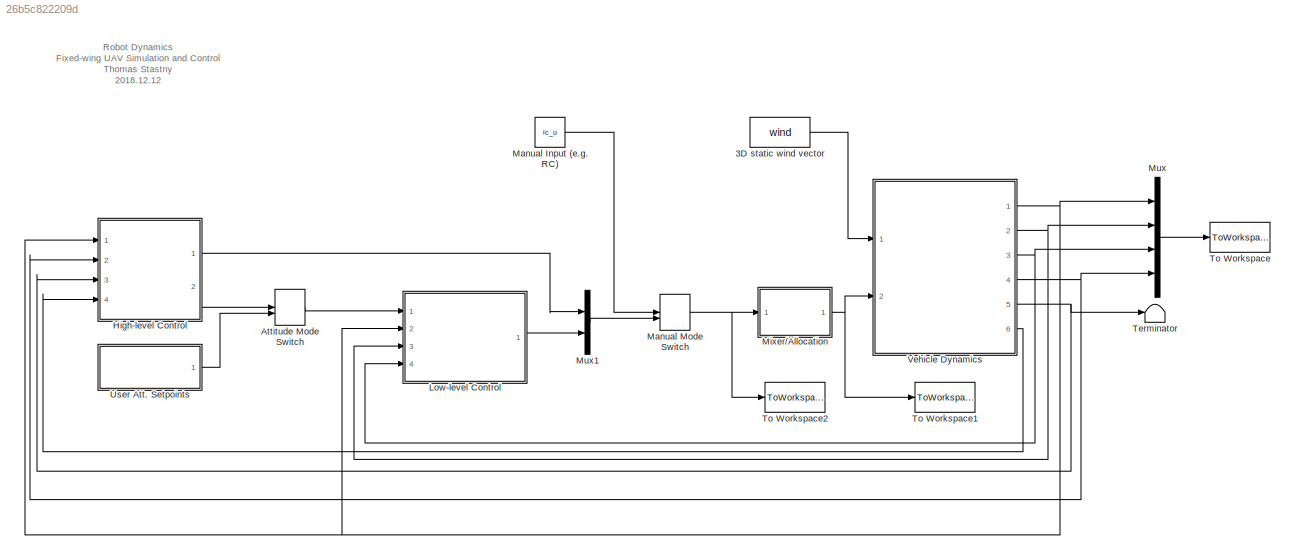
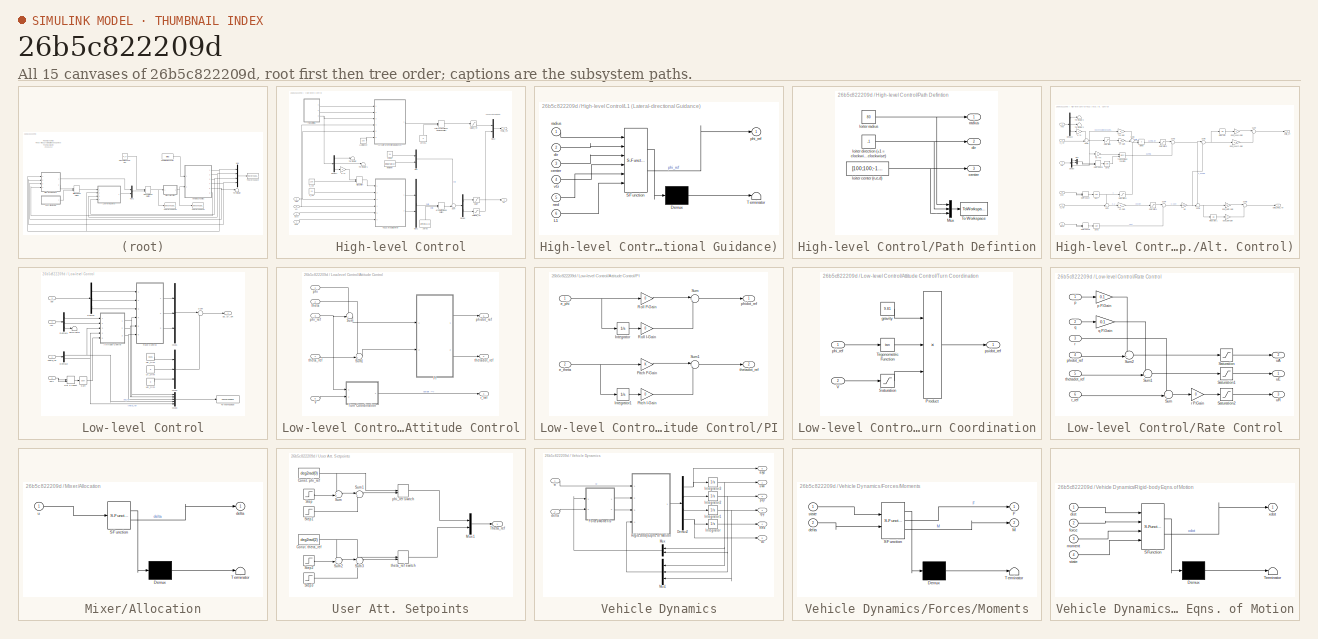
[diagram: thumbnail index - all 15 canvases of the model, root first then tree order]
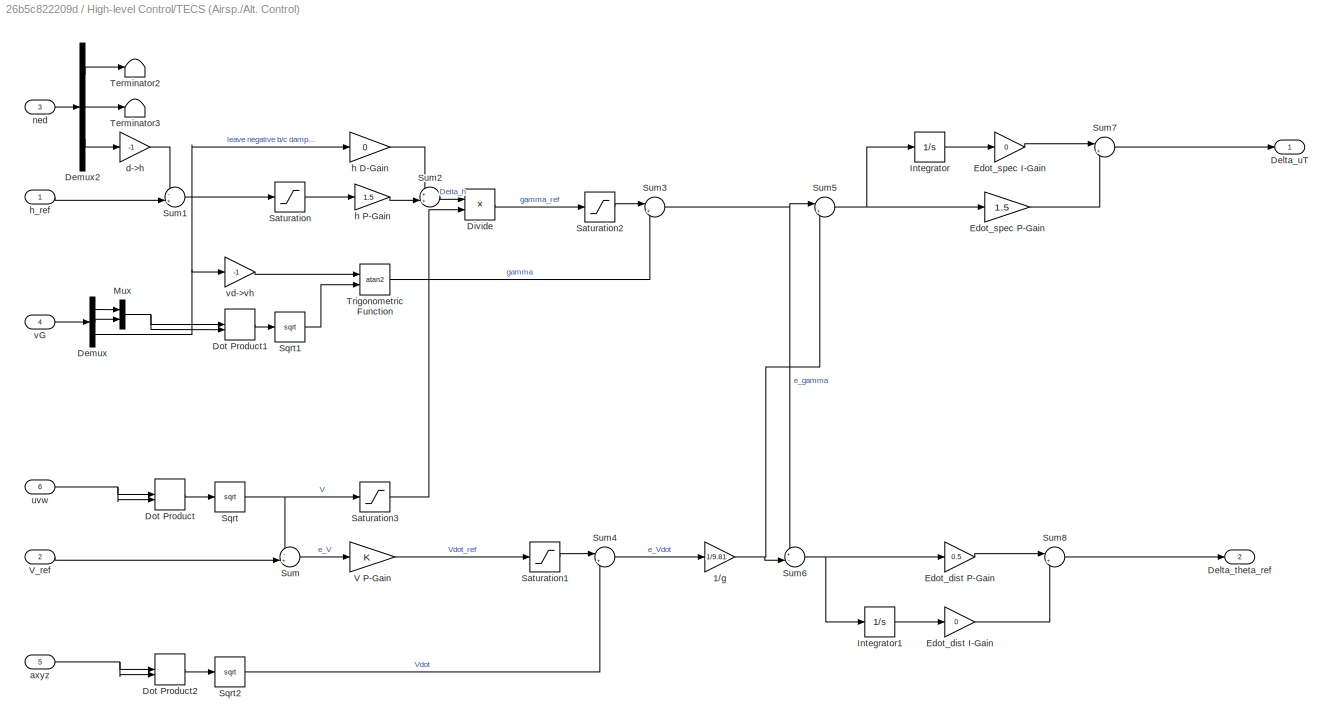
MODEL slx_26b5c822209d
KIND model
CONFIG AbsTol = auto
CONFIG EnableMultiTasking = on
CONFIG FixedStep = 0.01
CONFIG MaxStep = auto
CONFIG MinStep = auto
CONFIG RelTol = 1e-3
CONFIG SampleTimeConstraint = Unconstrained
CONFIG SolverName = ode4
CONFIG StartTime = 0.0
CONFIG StopTime = 15
BLOCK [Constant] 3D static wind vector
  Value = wind
BLOCK [ManualSwitch] Attitude Mode Switch
  CurrentSetting = 0
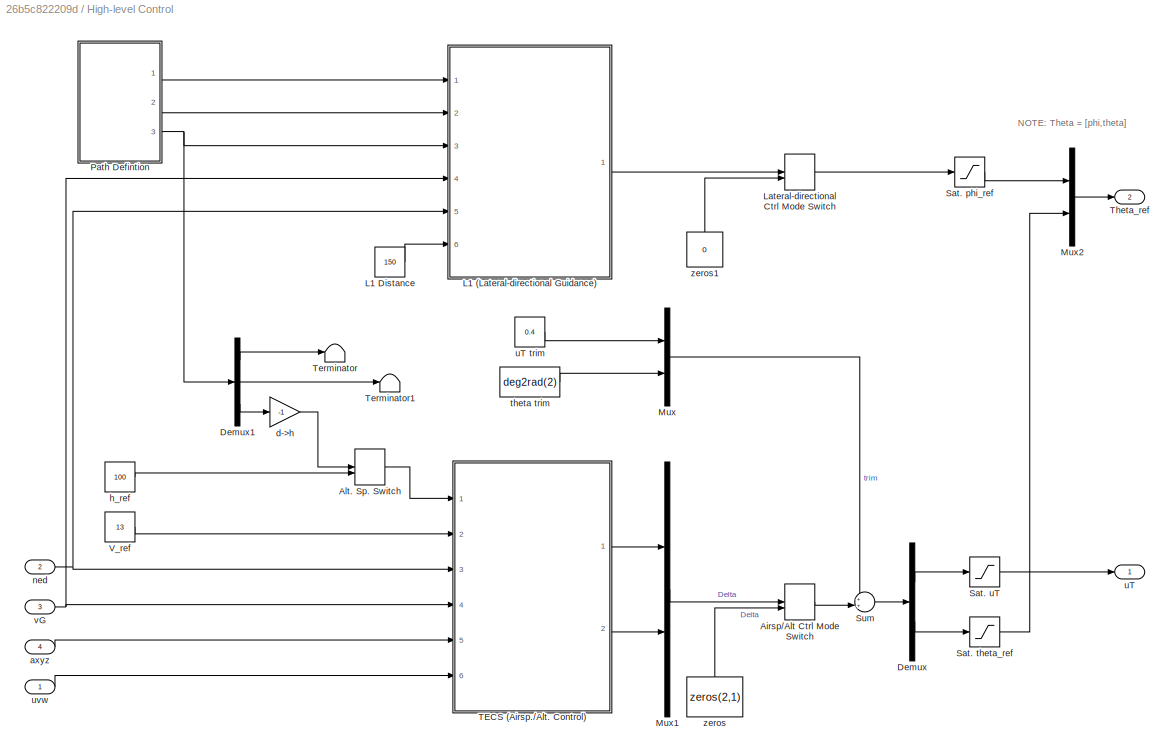
BLOCK [SubSystem] High-level Control
  Ports = [4, 2]
  RequestExecContextInheritance = off
BLOCK [ManualSwitch] High-level Control/Airsp//Alt Ctrl Mode Switch
  CurrentSetting = 0
BLOCK [ManualSwitch] High-level Control/Alt. Sp. Switch
  CurrentSetting = 0
BLOCK [Demux] High-level Control/Demux
  Outputs = 2
  Ports = [1, 2]
BLOCK [Demux] High-level Control/Demux1
  Outputs = 3
  Ports = [1, 3]
BLOCK [SubSystem] High-level Control/L1 (Lateral-directional Guidance)
  ErrorFcn = Stateflow.Translate.translate
  PermitHierarchicalResolution = ExplicitOnly
  Ports = [6, 1]
  RequestExecContextInheritance = off
  SFBlockType = MATLAB Function
  TreatAsAtomicUnit = on
BLOCK [Demux] High-level Control/L1 (Lateral-directional Guidance)/ Demux 
  Outputs = 1
  Ports = [1, 1]
BLOCK [S-Function] High-level Control/L1 (Lateral-directional Guidance)/ SFunction 
  EnableBusSupport = on
  FunctionName = sf_sfun
  PortCounts = [6 2]
  Ports = [6, 2]
  SFcnIsStateOwnerBlock = off
  SFunctionDeploymentMode = off
  Tag = Stateflow S-Function 4
BLOCK [Terminator] High-level Control/L1 (Lateral-directional Guidance)/ Terminator 
BLOCK [Inport] High-level Control/L1 (Lateral-directional Guidance)/L1
  Port = 6
BLOCK [Inport] High-level Control/L1 (Lateral-directional Guidance)/center
  Port = 3
BLOCK [Inport] High-level Control/L1 (Lateral-directional Guidance)/dir
  Port = 2
BLOCK [Inport] High-level Control/L1 (Lateral-directional Guidance)/ned
  Port = 5
BLOCK [Outport] High-level Control/L1 (Lateral-directional Guidance)/phi_ref
BLOCK [Inport] High-level Control/L1 (Lateral-directional Guidance)/radius
BLOCK [Inport] High-level Control/L1 (Lateral-directional Guidance)/vG
  Port = 4
BLOCK [Constant] High-level Control/L1 Distance
  Value = 150
BLOCK [ManualSwitch] High-level Control/Lateral-directional Ctrl Mode Switch
  CurrentSetting = 0
BLOCK [Mux] High-level Control/Mux
  DisplayOption = bar
  Inputs = 2
  Ports = [2, 1]
BLOCK [Mux] High-level Control/Mux1
  DisplayOption = bar
  Inputs = 2
  Ports = [2, 1]
BLOCK [Mux] High-level Control/Mux2
  DisplayOption = bar
  Inputs = 2
  Ports = [2, 1]
BLOCK [SubSystem] High-level Control/Path Defintion
  Ports = [0, 3]
  RequestExecContextInheritance = off
BLOCK [Mux] High-level Control/Path Defintion/Mux
  DisplayOption = bar
  Inputs = 3
  Ports = [3, 1]
BLOCK [ToWorkspace] High-level Control/Path Defintion/To Workspace
  FixptAsFi = on
  MaxDataPoints = inf
  Ports = [1]
  SampleTime = -1
  SaveFormat = Structure With Time
  VariableName = path_out
BLOCK [Outport] High-level Control/Path Defintion/center
  Port = 3
BLOCK [Outport] High-level Control/Path Defintion/dir
  Port = 2
BLOCK [Constant] High-level Control/Path Defintion/loiter center (n,e,d)
  Value = [100;100;-100]
BLOCK [Constant] High-level Control/Path Defintion/loiter direction (+1 = clockwise, -1 = counter-clockwise)
  Value = -1
BLOCK [Constant] High-level Control/Path Defintion/loiter radius
  Value = 80
BLOCK [Outport] High-level Control/Path Defintion/radius
BLOCK [Saturate] High-level Control/Sat. phi_ref
  LowerLimit = deg2rad(-30)
  UpperLimit = deg2rad(30)
BLOCK [Saturate] High-level Control/Sat. theta_ref
  LowerLimit = deg2rad(-15)
  UpperLimit = deg2rad(15)
BLOCK [Saturate] High-level Control/Sat. uT
  LowerLimit = 0
  UpperLimit = 1
BLOCK [Sum] High-level Control/Sum
  Inputs = ++|
  Ports = [2, 1]
BLOCK [SubSystem] High-level Control/TECS (Airsp.//Alt. Control)
  Ports = [6, 2]
  RequestExecContextInheritance = off
BLOCK [Gain] High-level Control/TECS (Airsp.//Alt. Control)/1//g
  Gain = 1/9.81
BLOCK [Outport] High-level Control/TECS (Airsp.//Alt. Control)/Delta_theta_ref
  Port = 2
BLOCK [Outport] High-level Control/TECS (Airsp.//Alt. Control)/Delta_uT
BLOCK [Demux] High-level Control/TECS (Airsp.//Alt. Control)/Demux
  Outputs = 3
  Ports = [1, 3]
BLOCK [Demux] High-level Control/TECS (Airsp.//Alt. Control)/Demux2
  Outputs = 3
  Ports = [1, 3]
BLOCK [Product] High-level Control/TECS (Airsp.//Alt. Control)/Divide
  Inputs = */
  Ports = [2, 1]
BLOCK [DotProduct] High-level Control/TECS (Airsp.//Alt. Control)/Dot Product
  OutDataTypeStr = Inherit: Inherit via internal rule
BLOCK [DotProduct] High-level Control/TECS (Airsp.//Alt. Control)/Dot Product1
  OutDataTypeStr = Inherit: Inherit via internal rule
BLOCK [DotProduct] High-level Control/TECS (Airsp.//Alt. Control)/Dot Product2
  OutDataTypeStr = Inherit: Inherit via internal rule
BLOCK [Gain] High-level Control/TECS (Airsp.//Alt. Control)/Edot_dist I-Gain
  Gain = 0
BLOCK [Gain] High-level Control/TECS (Airsp.//Alt. Control)/Edot_dist P-Gain
  Gain = 0.5
BLOCK [Gain] High-level Control/TECS (Airsp.//Alt. Control)/Edot_spec I-Gain
  Gain = 0
BLOCK [Gain] High-level Control/TECS (Airsp.//Alt. Control)/Edot_spec P-Gain
  Gain = 1.5
BLOCK [Integrator] High-level Control/TECS (Airsp.//Alt. Control)/Integrator
  Ports = [1, 1]
BLOCK [Integrator] High-level Control/TECS (Airsp.//Alt. Control)/Integrator1
  Ports = [1, 1]
BLOCK [Mux] High-level Control/TECS (Airsp.//Alt. Control)/Mux
  DisplayOption = bar
  Inputs = 2
  Ports = [2, 1]
BLOCK [Saturate] High-level Control/TECS (Airsp.//Alt. Control)/Saturation
  LowerLimit = -10
  UpperLimit = 10
BLOCK [Saturate] High-level Control/TECS (Airsp.//Alt. Control)/Saturation1
  LowerLimit = -10
  UpperLimit = 10
BLOCK [Saturate] High-level Control/TECS (Airsp.//Alt. Control)/Saturation2
  LowerLimit = deg2rad(-15)
  UpperLimit = deg2rad(15)
BLOCK [Saturate] High-level Control/TECS (Airsp.//Alt. Control)/Saturation3
  LowerLimit = 5
  UpperLimit = 20
BLOCK [Sqrt] High-level Control/TECS (Airsp.//Alt. Control)/Sqrt
BLOCK [Sqrt] High-level Control/TECS (Airsp.//Alt. Control)/Sqrt1
BLOCK [Sqrt] High-level Control/TECS (Airsp.//Alt. Control)/Sqrt2
BLOCK [Sum] High-level Control/TECS (Airsp.//Alt. Control)/Sum
  Inputs = -+|
  Ports = [2, 1]
BLOCK [Sum] High-level Control/TECS (Airsp.//Alt. Control)/Sum1
  Inputs = -+|
  Ports = [2, 1]
BLOCK [Sum] High-level Control/TECS (Airsp.//Alt. Control)/Sum2
  Inputs = ++|
  Ports = [2, 1]
BLOCK [Sum] High-level Control/TECS (Airsp.//Alt. Control)/Sum3
  Inputs = |+-
  Ports = [2, 1]
BLOCK [Sum] High-level Control/TECS (Airsp.//Alt. Control)/Sum4
  Inputs = |+-
  Ports = [2, 1]
BLOCK [Sum] High-level Control/TECS (Airsp.//Alt. Control)/Sum5
  Inputs = |++
  Ports = [2, 1]
BLOCK [Sum] High-level Control/TECS (Airsp.//Alt. Control)/Sum6
  Inputs = +-|
  Ports = [2, 1]
BLOCK [Sum] High-level Control/TECS (Airsp.//Alt. Control)/Sum7
  Inputs = |++
  Ports = [2, 1]
BLOCK [Sum] High-level Control/TECS (Airsp.//Alt. Control)/Sum8
  Inputs = |++
  Ports = [2, 1]
BLOCK [Terminator] High-level Control/TECS (Airsp.//Alt. Control)/Terminator2
BLOCK [Terminator] High-level Control/TECS (Airsp.//Alt. Control)/Terminator3
BLOCK [Trigonometry] High-level Control/TECS (Airsp.//Alt. Control)/Trigonometric Function
  Operator = atan2
  Ports = [2, 1]
BLOCK [Gain] High-level Control/TECS (Airsp.//Alt. Control)/V P-Gain
BLOCK [Inport] High-level Control/TECS (Airsp.//Alt. Control)/V_ref
  Port = 2
BLOCK [Inport] High-level Control/TECS (Airsp.//Alt. Control)/axyz
  Port = 5
BLOCK [Gain] High-level Control/TECS (Airsp.//Alt. Control)/d->h
  Gain = -1
BLOCK [Gain] High-level Control/TECS (Airsp.//Alt. Control)/h D-Gain
  Gain = 0
BLOCK [Gain] High-level Control/TECS (Airsp.//Alt. Control)/h P-Gain
  Gain = 1.5
BLOCK [Inport] High-level Control/TECS (Airsp.//Alt. Control)/h_ref
BLOCK [Inport] High-level Control/TECS (Airsp.//Alt. Control)/ned
  Port = 3
BLOCK [Inport] High-level Control/TECS (Airsp.//Alt. Control)/uvw
  Port = 6
BLOCK [Inport] High-level Control/TECS (Airsp.//Alt. Control)/vG
  Port = 4
BLOCK [Gain] High-level Control/TECS (Airsp.//Alt. Control)/vd->vh
  Gain = -1
BLOCK [Terminator] High-level Control/Terminator
BLOCK [Terminator] High-level Control/Terminator1
BLOCK [Outport] High-level Control/Theta_ref
  Port = 2
BLOCK [Constant] High-level Control/V_ref
  Value = 13
BLOCK [Inport] High-level Control/axyz
  Port = 4
BLOCK [Gain] High-level Control/d->h
  Gain = -1
BLOCK [Constant] High-level Control/h_ref
  Value = 100
BLOCK [Inport] High-level Control/ned
  Port = 2
BLOCK [Constant] High-level Control/theta trim
  Value = deg2rad(2)
BLOCK [Outport] High-level Control/uT
BLOCK [Constant] High-level Control/uT trim
  Value = 0.4
BLOCK [Inport] High-level Control/uvw
BLOCK [Inport] High-level Control/vG
  Port = 3
BLOCK [Constant] High-level Control/zeros
  NameLocation = right
  Value = zeros(2,1)
BLOCK [Constant] High-level Control/zeros1
  NameLocation = right
  Value = 0
BLOCK [SubSystem] Low-level Control
  Ports = [4, 1]
  RequestExecContextInheritance = off
BLOCK [SubSystem] Low-level Control/Attitude Control
  Ports = [5, 3]
  RequestExecContextInheritance = off
BLOCK [SubSystem] Low-level Control/Attitude Control/PI
  Ports = [2, 2]
  RequestExecContextInheritance = off
BLOCK [Integrator] Low-level Control/Attitude Control/PI/Integrator
  Ports = [1, 1]
BLOCK [Integrator] Low-level Control/Attitude Control/PI/Integrator1
  Ports = [1, 1]
BLOCK [Gain] Low-level Control/Attitude Control/PI/Pitch I-Gain
  Gain = 0
BLOCK [Gain] Low-level Control/Attitude Control/PI/Pitch P-Gain
BLOCK [Gain] Low-level Control/Attitude Control/PI/Roll I-Gain
  Gain = 0
BLOCK [Gain] Low-level Control/Attitude Control/PI/Roll P-Gain
  Gain = 0
BLOCK [Sum] Low-level Control/Attitude Control/PI/Sum
  Inputs = |++
  Ports = [2, 1]
BLOCK [Sum] Low-level Control/Attitude Control/PI/Sum1
  Inputs = |++
  Ports = [2, 1]
BLOCK [Inport] Low-level Control/Attitude Control/PI/e_phi
BLOCK [Inport] Low-level Control/Attitude Control/PI/e_theta
  Port = 2
BLOCK [Outport] Low-level Control/Attitude Control/PI/phidot_ref
BLOCK [Outport] Low-level Control/Attitude Control/PI/thetadot_ref
  Port = 2
BLOCK [Sum] Low-level Control/Attitude Control/Sum
  Inputs = -+|
  Ports = [2, 1]
BLOCK [Sum] Low-level Control/Attitude Control/Sum1
  Inputs = -+|
  Ports = [2, 1]
BLOCK [SubSystem] Low-level Control/Attitude Control/Turn Coordination
  Ports = [2, 1]
  RequestExecContextInheritance = off
BLOCK [Product] Low-level Control/Attitude Control/Turn Coordination/Product
  Inputs = **/
  Ports = [3, 1]
BLOCK [Saturate] Low-level Control/Attitude Control/Turn Coordination/Saturation
  LowerLimit = 5
  UpperLimit = 20
BLOCK [Trigonometry] Low-level Control/Attitude Control/Turn Coordination/Trigonometric Function
  Operator = tan
  Ports = [1, 1]
BLOCK [Inport] Low-level Control/Attitude Control/Turn Coordination/V
  Port = 2
BLOCK [Constant] Low-level Control/Attitude Control/Turn Coordination/gravity
  Value = 9.81
BLOCK [Inport] Low-level Control/Attitude Control/Turn Coordination/phi_ref
BLOCK [Outport] Low-level Control/Attitude Control/Turn Coordination/psidot_ref
BLOCK [Inport] Low-level Control/Attitude Control/V
  Port = 5
BLOCK [Inport] Low-level Control/Attitude Control/phi
BLOCK [Inport] Low-level Control/Attitude Control/phi_ref
  Port = 3
BLOCK [Outport] Low-level Control/Attitude Control/phidot_ref
BLOCK [Outport] Low-level Control/Attitude Control/r_ref
  Port = 3
BLOCK [Inport] Low-level Control/Attitude Control/theta
  Port = 2
BLOCK [Inport] Low-level Control/Attitude Control/theta_ref
  Port = 4
BLOCK [Outport] Low-level Control/Attitude Control/thetadot_ref
  Port = 2
BLOCK [Demux] Low-level Control/Demux
  Outputs = 3
  Ports = [1, 3]
BLOCK [Demux] Low-level Control/Demux1
  Outputs = 3
  Ports = [1, 3]
BLOCK [Demux] Low-level Control/Demux2
  Outputs = 2
  Ports = [1, 2]
BLOCK [DotProduct] Low-level Control/Dot Product
  OutDataTypeStr = Inherit: Inherit via internal rule
BLOCK [Mux] Low-level Control/Mux1
  DisplayOption = bar
  Inputs = 3
  Ports = [3, 1]
BLOCK [Mux] Low-level Control/Mux2
  DisplayOption = bar
  Inputs = 3
  Ports = [3, 1]
BLOCK [Mux] Low-level Control/Mux3
  DisplayOption = bar
  Inputs = 5
  Ports = [5, 1]
BLOCK [SubSystem] Low-level Control/Rate Control
  Ports = [6, 3]
  RequestExecContextInheritance = off
BLOCK [Saturate] Low-level Control/Rate Control/Saturation
  LowerLimit = -1
  UpperLimit = 1
BLOCK [Saturate] Low-level Control/Rate Control/Saturation1
  LowerLimit = -1
  UpperLimit = 1
BLOCK [Saturate] Low-level Control/Rate Control/Saturation2
  LowerLimit = -1
  UpperLimit = 1
BLOCK [Sum] Low-level Control/Rate Control/Sum
  Inputs = -+|
  Ports = [2, 1]
BLOCK [Sum] Low-level Control/Rate Control/Sum1
  Inputs = -+|
  Ports = [2, 1]
BLOCK [Sum] Low-level Control/Rate Control/Sum2
  Inputs = -+|
  Ports = [2, 1]
BLOCK [Inport] Low-level Control/Rate Control/p
BLOCK [Gain] Low-level Control/Rate Control/p P-Gain
  Gain = 0.1
BLOCK [Inport] Low-level Control/Rate Control/phidot_ref
  Port = 4
BLOCK [Inport] Low-level Control/Rate Control/q
  Port = 2
BLOCK [Gain] Low-level Control/Rate Control/q P-Gain
  Gain = 0.1
BLOCK [Inport] Low-level Control/Rate Control/r
  Port = 3
BLOCK [Gain] Low-level Control/Rate Control/r P-Gain
  Gain = 0
BLOCK [Inport] Low-level Control/Rate Control/r_ref
  Port = 6
BLOCK [Inport] Low-level Control/Rate Control/thetadot_ref
  Port = 5
BLOCK [Outport] Low-level Control/Rate Control/uA 
  Port = 2
BLOCK [Outport] Low-level Control/Rate Control/uE
BLOCK [Outport] Low-level Control/Rate Control/uR
  Port = 3
BLOCK [Sqrt] Low-level Control/Sqrt
BLOCK [Sum] Low-level Control/Sum
  Inputs = |++
  Ports = [2, 1]
BLOCK [Terminator] Low-level Control/Terminator
BLOCK [Inport] Low-level Control/Theta_ref
BLOCK [ToWorkspace] Low-level Control/To Workspace
  FixptAsFi = on
  MaxDataPoints = inf
  Ports = [1]
  SampleTime = -1
  SaveFormat = Structure With Time
  VariableName = control_ref_out
BLOCK [Inport] Low-level Control/pqr
  Port = 3
BLOCK [Inport] Low-level Control/rpy
  Port = 4
BLOCK [Constant] Low-level Control/uA_trim
  Value = 0
BLOCK [Outport] Low-level Control/uE,uA,uR
BLOCK [Constant] Low-level Control/uE_trim
  Value = 0.025
BLOCK [Constant] Low-level Control/uR_trim
  Value = 0
BLOCK [Inport] Low-level Control/uwv
  Port = 2
BLOCK [Constant] Manual Input (e.g. RC)
  Value = ic_u
BLOCK [ManualSwitch] Manual Mode Switch
  CurrentSetting = 0
BLOCK [SubSystem] Mixer//Allocation
  ErrorFcn = Stateflow.Translate.translate
  PermitHierarchicalResolution = ExplicitOnly
  Ports = [1, 1]
  RequestExecContextInheritance = off
  SFBlockType = MATLAB Function
  TreatAsAtomicUnit = on
BLOCK [Demux] Mixer//Allocation/ Demux 
  Outputs = 1
  Ports = [1, 1]
BLOCK [S-Function] Mixer//Allocation/ SFunction 
  EnableBusSupport = on
  FunctionName = sf_sfun
  PortCounts = [1 2]
  Ports = [1, 2]
  SFcnIsStateOwnerBlock = off
  SFunctionDeploymentMode = off
  Tag = Stateflow S-Function 1
BLOCK [Terminator] Mixer//Allocation/ Terminator 
BLOCK [Outport] Mixer//Allocation/delta
BLOCK [Inport] Mixer//Allocation/u
BLOCK [Mux] Mux
  DisplayOption = bar
  Ports = [4, 1]
BLOCK [Mux] Mux1
  DisplayOption = bar
  Inputs = 2
  Ports = [2, 1]
BLOCK [Terminator] Terminator
BLOCK [ToWorkspace] To Workspace
  FixptAsFi = on
  MaxDataPoints = inf
  Ports = [1]
  SampleTime = -1
  SaveFormat = Structure With Time
  VariableName = xout
BLOCK [ToWorkspace] To Workspace1
  FixptAsFi = on
  MaxDataPoints = inf
  Ports = [1]
  SampleTime = -1
  SaveFormat = Structure With Time
  VariableName = delta_out
BLOCK [ToWorkspace] To Workspace2
  FixptAsFi = on
  MaxDataPoints = inf
  Ports = [1]
  SampleTime = -1
  SaveFormat = Structure With Time
  VariableName = uout
BLOCK [SubSystem] User Att. Setpoints
  Ports = [0, 1]
  RequestExecContextInheritance = off
BLOCK [Constant] User Att. Setpoints/Const. phi_ref
  Value = deg2rad(0)
BLOCK [Constant] User Att. Setpoints/Const. theta_ref
  Value = deg2rad(2)
BLOCK [Mux] User Att. Setpoints/Mux1
  DisplayOption = bar
  Inputs = 2
  Ports = [2, 1]
BLOCK [Step] User Att. Setpoints/Step
  After = deg2rad(20)
  SampleTime = 0
  Time = 5
BLOCK [Step] User Att. Setpoints/Step1
  After = deg2rad(-20)
  SampleTime = 0
  Time = 7
BLOCK [Step] User Att. Setpoints/Step2
  After = deg2rad(7)
  SampleTime = 0
  Time = 5
BLOCK [Step] User Att. Setpoints/Step3
  After = deg2rad(-7)
  SampleTime = 0
  Time = 7
BLOCK [Sum] User Att. Setpoints/Sum
  Inputs = ++|
  Ports = [2, 1]
BLOCK [Sum] User Att. Setpoints/Sum1
  Inputs = |++
  Ports = [2, 1]
BLOCK [Sum] User Att. Setpoints/Sum2
  Inputs = ++|
  Ports = [2, 1]
BLOCK [Sum] User Att. Setpoints/Sum3
  Inputs = |++
  Ports = [2, 1]
BLOCK [Outport] User Att. Setpoints/Theta_ref
BLOCK [ManualSwitch] User Att. Setpoints/phi_ref switch
  CurrentSetting = 0
BLOCK [ManualSwitch] User Att. Setpoints/theta_ref switch
  CurrentSetting = 0
BLOCK [SubSystem] Vehicle Dynamics
  Ports = [2, 6]
  RequestExecContextInheritance = off
BLOCK [Demux] Vehicle Dynamics/Demux2
  Ports = [1, 4]
BLOCK [SubSystem] Vehicle Dynamics/Forces//Moments
  ErrorFcn = Stateflow.Translate.translate
  PermitHierarchicalResolution = ExplicitOnly
  Ports = [2, 2]
  RequestExecContextInheritance = off
  SFBlockType = MATLAB Function
  TreatAsAtomicUnit = on
BLOCK [Demux] Vehicle Dynamics/Forces//Moments/ Demux 
  Outputs = 1
  Ports = [1, 1]
BLOCK [S-Function] Vehicle Dynamics/Forces//Moments/ SFunction 
  EnableBusSupport = on
  FunctionName = sf_sfun
  PortCounts = [2 3]
  Ports = [2, 3]
  SFcnIsStateOwnerBlock = off
  SFunctionDeploymentMode = off
  Tag = Stateflow S-Function 2
BLOCK [Terminator] Vehicle Dynamics/Forces//Moments/ Terminator 
BLOCK [Outport] Vehicle Dynamics/Forces//Moments/F
BLOCK [Outport] Vehicle Dynamics/Forces//Moments/M
  Port = 2
BLOCK [Inport] Vehicle Dynamics/Forces//Moments/delta
  Port = 2
BLOCK [Inport] Vehicle Dynamics/Forces//Moments/state
BLOCK [Integrator] Vehicle Dynamics/Integrator
  InitialCondition = ic_ned
  Ports = [1, 1]
BLOCK [Integrator] Vehicle Dynamics/Integrator1
  InitialCondition = ic_rpy
  Ports = [1, 1]
BLOCK [Integrator] Vehicle Dynamics/Integrator2
  InitialCondition = ic_pqr
  Ports = [1, 1]
BLOCK [Integrator] Vehicle Dynamics/Integrator3
  InitialCondition = ic_uvw
  Ports = [1, 1]
BLOCK [Mux] Vehicle Dynamics/Mux
  DisplayOption = bar
  Inputs = 2
  Ports = [2, 1]
BLOCK [Mux] Vehicle Dynamics/Mux1
  DisplayOption = bar
  Inputs = 3
  Ports = [3, 1]
BLOCK [SubSystem] Vehicle Dynamics/Rigid-body Eqns. of Motion
  ErrorFcn = Stateflow.Translate.translate
  PermitHierarchicalResolution = ExplicitOnly
  Ports = [4, 1]
  RequestExecContextInheritance = off
  SFBlockType = MATLAB Function
  TreatAsAtomicUnit = on
BLOCK [Demux] Vehicle Dynamics/Rigid-body Eqns. of Motion/ Demux 
  Outputs = 1
  Ports = [1, 1]
BLOCK [S-Function] Vehicle Dynamics/Rigid-body Eqns. of Motion/ SFunction 
  EnableBusSupport = on
  FunctionName = sf_sfun
  PortCounts = [4 2]
  Ports = [4, 2]
  SFcnIsStateOwnerBlock = off
  SFunctionDeploymentMode = off
  Tag = Stateflow S-Function 3
BLOCK [Terminator] Vehicle Dynamics/Rigid-body Eqns. of Motion/ Terminator 
BLOCK [Inport] Vehicle Dynamics/Rigid-body Eqns. of Motion/dist
BLOCK [Inport] Vehicle Dynamics/Rigid-body Eqns. of Motion/force
  Port = 2
BLOCK [Inport] Vehicle Dynamics/Rigid-body Eqns. of Motion/moment
  Port = 3
BLOCK [Inport] Vehicle Dynamics/Rigid-body Eqns. of Motion/state
  Port = 4
BLOCK [Outport] Vehicle Dynamics/Rigid-body Eqns. of Motion/xdot
BLOCK [Outport] Vehicle Dynamics/axyz
  Port = 6
BLOCK [Inport] Vehicle Dynamics/delta
  Port = 2
BLOCK [Outport] Vehicle Dynamics/ned
  Port = 4
BLOCK [Outport] Vehicle Dynamics/pqr
  Port = 2
BLOCK [Outport] Vehicle Dynamics/rpy
  Port = 3
BLOCK [Outport] Vehicle Dynamics/uvw
BLOCK [Outport] Vehicle Dynamics/vG
  Port = 5
BLOCK [Inport] Vehicle Dynamics/w
ANNOTATION (root): Robot Dynamics Fixed-wing UAV Simulation and Control Thomas Stastny 2018.12.12
ANNOTATION High-level Control: NOTE: Theta = [phi,theta]
LINE 3D static wind vector:1 -> Vehicle Dynamics:1
LINE Attitude Mode Switch:1 -> Low-level Control:1
LINE High-level Control/Airsp//Alt Ctrl Mode Switch:1 -> High-level Control/Sum:2
LINE High-level Control/Alt. Sp. Switch:1 -> High-level Control/TECS (Airsp.//Alt. Control):1
LINE High-level Control/Demux1:1 -> High-level Control/Terminator:1
LINE High-level Control/Demux1:2 -> High-level Control/Terminator1:1
LINE High-level Control/Demux1:3 -> High-level Control/d->h:1
LINE High-level Control/Demux:1 -> High-level Control/Sat. uT:1
LINE High-level Control/Demux:2 -> High-level Control/Sat. theta_ref:1
LINE High-level Control/L1 (Lateral-directional Guidance):1 -> High-level Control/Lateral-directional Ctrl Mode Switch:1
LINE High-level Control/L1 Distance:1 -> High-level Control/L1 (Lateral-directional Guidance):6
LINE High-level Control/Lateral-directional Ctrl Mode Switch:1 -> High-level Control/Sat. phi_ref:1
LINE High-level Control/Mux1:1 -> High-level Control/Airsp//Alt Ctrl Mode Switch:1
LINE High-level Control/Mux2:1 -> High-level Control/Theta_ref:1
LINE High-level Control/Mux:1 -> High-level Control/Sum:1
LINE High-level Control/Path Defintion/Mux:1 -> High-level Control/Path Defintion/To Workspace:1
NET High-level Control/Path Defintion/loiter center (n,e,d):1 -> High-level Control/Path Defintion/Mux:3, High-level Control/Path Defintion/center:1
NET High-level Control/Path Defintion/loiter direction (+1 = clockwise, -1 = counter-clockwise):1 -> High-level Control/Path Defintion/Mux:2, High-level Control/Path Defintion/dir:1
NET High-level Control/Path Defintion/loiter radius:1 -> High-level Control/Path Defintion/Mux:1, High-level Control/Path Defintion/radius:1
LINE High-level Control/Path Defintion:1 -> High-level Control/L1 (Lateral-directional Guidance):1
LINE High-level Control/Path Defintion:2 -> High-level Control/L1 (Lateral-directional Guidance):2
NET High-level Control/Path Defintion:3 -> High-level Control/Demux1:1, High-level Control/L1 (Lateral-directional Guidance):3
LINE High-level Control/Sat. phi_ref:1 -> High-level Control/Mux2:1
LINE High-level Control/Sat. theta_ref:1 -> High-level Control/Mux2:2
LINE High-level Control/Sat. uT:1 -> High-level Control/uT:1
LINE High-level Control/Sum:1 -> High-level Control/Demux:1
NET High-level Control/TECS (Airsp.//Alt. Control)/1//g:1 -> High-level Control/TECS (Airsp.//Alt. Control)/Sum5:2, High-level Control/TECS (Airsp.//Alt. Control)/Sum6:2
LINE High-level Control/TECS (Airsp.//Alt. Control)/Demux2:1 -> High-level Control/TECS (Airsp.//Alt. Control)/Terminator2:1
LINE High-level Control/TECS (Airsp.//Alt. Control)/Demux2:2 -> High-level Control/TECS (Airsp.//Alt. Control)/Terminator3:1
LINE High-level Control/TECS (Airsp.//Alt. Control)/Demux2:3 -> High-level Control/TECS (Airsp.//Alt. Control)/d->h:1
LINE High-level Control/TECS (Airsp.//Alt. Control)/Demux:1 -> High-level Control/TECS (Airsp.//Alt. Control)/Mux:1
LINE High-level Control/TECS (Airsp.//Alt. Control)/Demux:2 -> High-level Control/TECS (Airsp.//Alt. Control)/Mux:2
NET High-level Control/TECS (Airsp.//Alt. Control)/Demux:3 -> High-level Control/TECS (Airsp.//Alt. Control)/h D-Gain:1, High-level Control/TECS (Airsp.//Alt. Control)/vd->vh:1
LINE High-level Control/TECS (Airsp.//Alt. Control)/Divide:1 -> High-level Control/TECS (Airsp.//Alt. Control)/Saturation2:1
LINE High-level Control/TECS (Airsp.//Alt. Control)/Dot Product1:1 -> High-level Control/TECS (Airsp.//Alt. Control)/Sqrt1:1
LINE High-level Control/TECS (Airsp.//Alt. Control)/Dot Product2:1 -> High-level Control/TECS (Airsp.//Alt. Control)/Sqrt2:1
LINE High-level Control/TECS (Airsp.//Alt. Control)/Dot Product:1 -> High-level Control/TECS (Airsp.//Alt. Control)/Sqrt:1
LINE High-level Control/TECS (Airsp.//Alt. Control)/Edot_dist I-Gain:1 -> High-level Control/TECS (Airsp.//Alt. Control)/Sum8:2
LINE High-level Control/TECS (Airsp.//Alt. Control)/Edot_dist P-Gain:1 -> High-level Control/TECS (Airsp.//Alt. Control)/Sum8:1
LINE High-level Control/TECS (Airsp.//Alt. Control)/Edot_spec I-Gain:1 -> High-level Control/TECS (Airsp.//Alt. Control)/Sum7:1
LINE High-level Control/TECS (Airsp.//Alt. Control)/Edot_spec P-Gain:1 -> High-level Control/TECS (Airsp.//Alt. Control)/Sum7:2
LINE High-level Control/TECS (Airsp.//Alt. Control)/Integrator1:1 -> High-level Control/TECS (Airsp.//Alt. Control)/Edot_dist I-Gain:1
LINE High-level Control/TECS (Airsp.//Alt. Control)/Integrator:1 -> High-level Control/TECS (Airsp.//Alt. Control)/Edot_spec I-Gain:1
NET High-level Control/TECS (Airsp.//Alt. Control)/Mux:1 -> High-level Control/TECS (Airsp.//Alt. Control)/Dot Product1:1, High-level Control/TECS (Airsp.//Alt. Control)/Dot Product1:2
LINE High-level Control/TECS (Airsp.//Alt. Control)/Saturation1:1 -> High-level Control/TECS (Airsp.//Alt. Control)/Sum4:1
LINE High-level Control/TECS (Airsp.//Alt. Control)/Saturation2:1 -> High-level Control/TECS (Airsp.//Alt. Control)/Sum3:1
LINE High-level Control/TECS (Airsp.//Alt. Control)/Saturation3:1 -> High-level Control/TECS (Airsp.//Alt. Control)/Divide:2
LINE High-level Control/TECS (Airsp.//Alt. Control)/Saturation:1 -> High-level Control/TECS (Airsp.//Alt. Control)/h P-Gain:1
LINE High-level Control/TECS (Airsp.//Alt. Control)/Sqrt1:1 -> High-level Control/TECS (Airsp.//Alt. Control)/Trigonometric Function:2
LINE High-level Control/TECS (Airsp.//Alt. Control)/Sqrt2:1 -> High-level Control/TECS (Airsp.//Alt. Control)/Sum4:2
NET High-level Control/TECS (Airsp.//Alt. Control)/Sqrt:1 -> High-level Control/TECS (Airsp.//Alt. Control)/Saturation3:1, High-level Control/TECS (Airsp.//Alt. Control)/Sum:1
LINE High-level Control/TECS (Airsp.//Alt. Control)/Sum1:1 -> High-level Control/TECS (Airsp.//Alt. Control)/Saturation:1
LINE High-level Control/TECS (Airsp.//Alt. Control)/Sum2:1 -> High-level Control/TECS (Airsp.//Alt. Control)/Divide:1
NET High-level Control/TECS (Airsp.//Alt. Control)/Sum3:1 -> High-level Control/TECS (Airsp.//Alt. Control)/Sum5:1, High-level Control/TECS (Airsp.//Alt. Control)/Sum6:1
LINE High-level Control/TECS (Airsp.//Alt. Control)/Sum4:1 -> High-level Control/TECS (Airsp.//Alt. Control)/1//g:1
NET High-level Control/TECS (Airsp.//Alt. Control)/Sum5:1 -> High-level Control/TECS (Airsp.//Alt. Control)/Edot_spec P-Gain:1, High-level Control/TECS (Airsp.//Alt. Control)/Integrator:1
NET High-level Control/TECS (Airsp.//Alt. Control)/Sum6:1 -> High-level Control/TECS (Airsp.//Alt. Control)/Edot_dist P-Gain:1, High-level Control/TECS (Airsp.//Alt. Control)/Integrator1:1
LINE High-level Control/TECS (Airsp.//Alt. Control)/Sum7:1 -> High-level Control/TECS (Airsp.//Alt. Control)/Delta_uT:1
LINE High-level Control/TECS (Airsp.//Alt. Control)/Sum8:1 -> High-level Control/TECS (Airsp.//Alt. Control)/Delta_theta_ref:1
LINE High-level Control/TECS (Airsp.//Alt. Control)/Sum:1 -> High-level Control/TECS (Airsp.//Alt. Control)/V P-Gain:1
LINE High-level Control/TECS (Airsp.//Alt. Control)/Trigonometric Function:1 -> High-level Control/TECS (Airsp.//Alt. Control)/Sum3:2
LINE High-level Control/TECS (Airsp.//Alt. Control)/V P-Gain:1 -> High-level Control/TECS (Airsp.//Alt. Control)/Saturation1:1
LINE High-level Control/TECS (Airsp.//Alt. Control)/V_ref:1 -> High-level Control/TECS (Airsp.//Alt. Control)/Sum:2
NET High-level Control/TECS (Airsp.//Alt. Control)/axyz:1 -> High-level Control/TECS (Airsp.//Alt. Control)/Dot Product2:1, High-level Control/TECS (Airsp.//Alt. Control)/Dot Product2:2
LINE High-level Control/TECS (Airsp.//Alt. Control)/d->h:1 -> High-level Control/TECS (Airsp.//Alt. Control)/Sum1:1
LINE High-level Control/TECS (Airsp.//Alt. Control)/h D-Gain:1 -> High-level Control/TECS (Airsp.//Alt. Control)/Sum2:1
LINE High-level Control/TECS (Airsp.//Alt. Control)/h P-Gain:1 -> High-level Control/TECS (Airsp.//Alt. Control)/Sum2:2
LINE High-level Control/TECS (Airsp.//Alt. Control)/h_ref:1 -> High-level Control/TECS (Airsp.//Alt. Control)/Sum1:2
LINE High-level Control/TECS (Airsp.//Alt. Control)/ned:1 -> High-level Control/TECS (Airsp.//Alt. Control)/Demux2:1
NET High-level Control/TECS (Airsp.//Alt. Control)/uvw:1 -> High-level Control/TECS (Airsp.//Alt. Control)/Dot Product:1, High-level Control/TECS (Airsp.//Alt. Control)/Dot Product:2
LINE High-level Control/TECS (Airsp.//Alt. Control)/vG:1 -> High-level Control/TECS (Airsp.//Alt. Control)/Demux:1
LINE High-level Control/TECS (Airsp.//Alt. Control)/vd->vh:1 -> High-level Control/TECS (Airsp.//Alt. Control)/Trigonometric Function:1
LINE High-level Control/TECS (Airsp.//Alt. Control):1 -> High-level Control/Mux1:1
LINE High-level Control/TECS (Airsp.//Alt. Control):2 -> High-level Control/Mux1:2
LINE High-level Control/V_ref:1 -> High-level Control/TECS (Airsp.//Alt. Control):2
LINE High-level Control/axyz:1 -> High-level Control/TECS (Airsp.//Alt. Control):5
LINE High-level Control/d->h:1 -> High-level Control/Alt. Sp. Switch:1
LINE High-level Control/h_ref:1 -> High-level Control/Alt. Sp. Switch:2
NET High-level Control/ned:1 -> High-level Control/L1 (Lateral-directional Guidance):5, High-level Control/TECS (Airsp.//Alt. Control):3
LINE High-level Control/theta trim:1 -> High-level Control/Mux:2
LINE High-level Control/uT trim:1 -> High-level Control/Mux:1
LINE High-level Control/uvw:1 -> High-level Control/TECS (Airsp.//Alt. Control):6
NET High-level Control/vG:1 -> High-level Control/L1 (Lateral-directional Guidance):4, High-level Control/TECS (Airsp.//Alt. Control):4
LINE High-level Control/zeros1:1 -> High-level Control/Lateral-directional Ctrl Mode Switch:2
LINE High-level Control/zeros:1 -> High-level Control/Airsp//Alt Ctrl Mode Switch:2
LINE High-level Control:1 -> Mux1:1
LINE High-level Control:2 -> Attitude Mode Switch:1
LINE Low-level Control/Attitude Control/PI/Integrator1:1 -> Low-level Control/Attitude Control/PI/Pitch I-Gain:1
LINE Low-level Control/Attitude Control/PI/Integrator:1 -> Low-level Control/Attitude Control/PI/Roll I-Gain:1
LINE Low-level Control/Attitude Control/PI/Pitch I-Gain:1 -> Low-level Control/Attitude Control/PI/Sum1:2
LINE Low-level Control/Attitude Control/PI/Pitch P-Gain:1 -> Low-level Control/Attitude Control/PI/Sum1:1
LINE Low-level Control/Attitude Control/PI/Roll I-Gain:1 -> Low-level Control/Attitude Control/PI/Sum:2
LINE Low-level Control/Attitude Control/PI/Roll P-Gain:1 -> Low-level Control/Attitude Control/PI/Sum:1
LINE Low-level Control/Attitude Control/PI/Sum1:1 -> Low-level Control/Attitude Control/PI/thetadot_ref:1
LINE Low-level Control/Attitude Control/PI/Sum:1 -> Low-level Control/Attitude Control/PI/phidot_ref:1
NET Low-level Control/Attitude Control/PI/e_phi:1 -> Low-level Control/Attitude Control/PI/Integrator:1, Low-level Control/Attitude Control/PI/Roll P-Gain:1
NET Low-level Control/Attitude Control/PI/e_theta:1 -> Low-level Control/Attitude Control/PI/Integrator1:1, Low-level Control/Attitude Control/PI/Pitch P-Gain:1
LINE Low-level Control/Attitude Control/PI:1 -> Low-level Control/Attitude Control/phidot_ref:1
LINE Low-level Control/Attitude Control/PI:2 -> Low-level Control/Attitude Control/thetadot_ref:1
LINE Low-level Control/Attitude Control/Sum1:1 -> Low-level Control/Attitude Control/PI:2
LINE Low-level Control/Attitude Control/Sum:1 -> Low-level Control/Attitude Control/PI:1
LINE Low-level Control/Attitude Control/Turn Coordination/Product:1 -> Low-level Control/Attitude Control/Turn Coordination/psidot_ref:1
LINE Low-level Control/Attitude Control/Turn Coordination/Saturation:1 -> Low-level Control/Attitude Control/Turn Coordination/Product:3
LINE Low-level Control/Attitude Control/Turn Coordination/Trigonometric Function:1 -> Low-level Control/Attitude Control/Turn Coordination/Product:2
LINE Low-level Control/Attitude Control/Turn Coordination/V:1 -> Low-level Control/Attitude Control/Turn Coordination/Saturation:1
LINE Low-level Control/Attitude Control/Turn Coordination/gravity:1 -> Low-level Control/Attitude Control/Turn Coordination/Product:1
LINE Low-level Control/Attitude Control/Turn Coordination/phi_ref:1 -> Low-level Control/Attitude Control/Turn Coordination/Trigonometric Function:1
LINE Low-level Control/Attitude Control/Turn Coordination:1 -> Low-level Control/Attitude Control/r_ref:1
LINE Low-level Control/Attitude Control/V:1 -> Low-level Control/Attitude Control/Turn Coordination:2
LINE Low-level Control/Attitude Control/phi:1 -> Low-level Control/Attitude Control/Sum:1
NET Low-level Control/Attitude Control/phi_ref:1 -> Low-level Control/Attitude Control/Sum:2, Low-level Control/Attitude Control/Turn Coordination:1
LINE Low-level Control/Attitude Control/theta:1 -> Low-level Control/Attitude Control/Sum1:1
LINE Low-level Control/Attitude Control/theta_ref:1 -> Low-level Control/Attitude Control/Sum1:2
NET Low-level Control/Attitude Control:1 -> Low-level Control/Mux3:1, Low-level Control/Rate Control:4
NET Low-level Control/Attitude Control:2 -> Low-level Control/Mux3:2, Low-level Control/Rate Control:5
NET Low-level Control/Attitude Control:3 -> Low-level Control/Mux3:3, Low-level Control/Rate Control:6
LINE Low-level Control/Demux1:1 -> Low-level Control/Attitude Control:1
LINE Low-level Control/Demux1:2 -> Low-level Control/Attitude Control:2
LINE Low-level Control/Demux1:3 -> Low-level Control/Terminator:1
NET Low-level Control/Demux2:1 -> Low-level Control/Attitude Control:3, Low-level Control/Mux3:4
NET Low-level Control/Demux2:2 -> Low-level Control/Attitude Control:4, Low-level Control/Mux3:5
LINE Low-level Control/Demux:1 -> Low-level Control/Rate Control:1
LINE Low-level Control/Demux:2 -> Low-level Control/Rate Control:2
LINE Low-level Control/Demux:3 -> Low-level Control/Rate Control:3
LINE Low-level Control/Dot Product:1 -> Low-level Control/Sqrt:1
LINE Low-level Control/Mux1:1 -> Low-level Control/Sum:1
LINE Low-level Control/Mux2:1 -> Low-level Control/Sum:2
LINE Low-level Control/Mux3:1 -> Low-level Control/To Workspace:1
LINE Low-level Control/Rate Control/Saturation1:1 -> Low-level Control/Rate Control/uE:1
LINE Low-level Control/Rate Control/Saturation2:1 -> Low-level Control/Rate Control/uR:1
LINE Low-level Control/Rate Control/Saturation:1 -> Low-level Control/Rate Control/uA :1
LINE Low-level Control/Rate Control/Sum1:1 -> Low-level Control/Rate Control/Saturation1:1
LINE Low-level Control/Rate Control/Sum2:1 -> Low-level Control/Rate Control/Saturation:1
LINE Low-level Control/Rate Control/Sum:1 -> Low-level Control/Rate Control/r P-Gain:1
LINE Low-level Control/Rate Control/p P-Gain:1 -> Low-level Control/Rate Control/Sum2:1
LINE Low-level Control/Rate Control/p:1 -> Low-level Control/Rate Control/p P-Gain:1
LINE Low-level Control/Rate Control/phidot_ref:1 -> Low-level Control/Rate Control/Sum2:2
LINE Low-level Control/Rate Control/q P-Gain:1 -> Low-level Control/Rate Control/Sum1:1
LINE Low-level Control/Rate Control/q:1 -> Low-level Control/Rate Control/q P-Gain:1
LINE Low-level Control/Rate Control/r P-Gain:1 -> Low-level Control/Rate Control/Saturation2:1
LINE Low-level Control/Rate Control/r:1 -> Low-level Control/Rate Control/Sum:1
LINE Low-level Control/Rate Control/r_ref:1 -> Low-level Control/Rate Control/Sum:2
LINE Low-level Control/Rate Control/thetadot_ref:1 -> Low-level Control/Rate Control/Sum1:2
LINE Low-level Control/Rate Control:1 -> Low-level Control/Mux1:1
LINE Low-level Control/Rate Control:2 -> Low-level Control/Mux1:2
LINE Low-level Control/Rate Control:3 -> Low-level Control/Mux1:3
LINE Low-level Control/Sqrt:1 -> Low-level Control/Attitude Control:5
LINE Low-level Control/Sum:1 -> Low-level Control/uE,uA,uR:1
LINE Low-level Control/Theta_ref:1 -> Low-level Control/Demux2:1
LINE Low-level Control/pqr:1 -> Low-level Control/Demux:1
LINE Low-level Control/rpy:1 -> Low-level Control/Demux1:1
LINE Low-level Control/uA_trim:1 -> Low-level Control/Mux2:2
LINE Low-level Control/uE_trim:1 -> Low-level Control/Mux2:1
LINE Low-level Control/uR_trim:1 -> Low-level Control/Mux2:3
NET Low-level Control/uwv:1 -> Low-level Control/Dot Product:1, Low-level Control/Dot Product:2
LINE Low-level Control:1 -> Mux1:2
LINE Manual Input (e.g. RC):1 -> Manual Mode Switch:1
NET Manual Mode Switch:1 -> Mixer//Allocation:1, To Workspace2:1
NET Mixer//Allocation:1 -> To Workspace1:1, Vehicle Dynamics:2
LINE Mux1:1 -> Manual Mode Switch:2
LINE Mux:1 -> To Workspace:1
NET User Att. Setpoints/Const. phi_ref:1 -> User Att. Setpoints/Sum:1, User Att. Setpoints/phi_ref switch:1
NET User Att. Setpoints/Const. theta_ref:1 -> User Att. Setpoints/Sum2:1, User Att. Setpoints/theta_ref switch:1
LINE User Att. Setpoints/Mux1:1 -> User Att. Setpoints/Theta_ref:1
LINE User Att. Setpoints/Step1:1 -> User Att. Setpoints/Sum1:2
LINE User Att. Setpoints/Step2:1 -> User Att. Setpoints/Sum2:2
LINE User Att. Setpoints/Step3:1 -> User Att. Setpoints/Sum3:2
LINE User Att. Setpoints/Step:1 -> User Att. Setpoints/Sum:2
LINE User Att. Setpoints/Sum1:1 -> User Att. Setpoints/phi_ref switch:2
LINE User Att. Setpoints/Sum2:1 -> User Att. Setpoints/Sum3:1
LINE User Att. Setpoints/Sum3:1 -> User Att. Setpoints/theta_ref switch:2
LINE User Att. Setpoints/Sum:1 -> User Att. Setpoints/Sum1:1
LINE User Att. Setpoints/phi_ref switch:1 -> User Att. Setpoints/Mux1:1
LINE User Att. Setpoints/theta_ref switch:1 -> User Att. Setpoints/Mux1:2
LINE User Att. Setpoints:1 -> Attitude Mode Switch:2
NET Vehicle Dynamics/Demux2:1 -> Vehicle Dynamics/Integrator3:1, Vehicle Dynamics/axyz:1
LINE Vehicle Dynamics/Demux2:2 -> Vehicle Dynamics/Integrator2:1
LINE Vehicle Dynamics/Demux2:3 -> Vehicle Dynamics/Integrator1:1
NET Vehicle Dynamics/Demux2:4 -> Vehicle Dynamics/Integrator:1, Vehicle Dynamics/vG:1
LINE Vehicle Dynamics/Forces//Moments:1 -> Vehicle Dynamics/Rigid-body Eqns. of Motion:2
LINE Vehicle Dynamics/Forces//Moments:2 -> Vehicle Dynamics/Rigid-body Eqns. of Motion:3
NET Vehicle Dynamics/Integrator1:1 -> Vehicle Dynamics/Mux1:3, Vehicle Dynamics/rpy:1
NET Vehicle Dynamics/Integrator2:1 -> Vehicle Dynamics/Mux1:2, Vehicle Dynamics/Mux:2, Vehicle Dynamics/pqr:1
NET Vehicle Dynamics/Integrator3:1 -> Vehicle Dynamics/Mux1:1, Vehicle Dynamics/Mux:1, Vehicle Dynamics/uvw:1
LINE Vehicle Dynamics/Integrator:1 -> Vehicle Dynamics/ned:1
LINE Vehicle Dynamics/Mux1:1 -> Vehicle Dynamics/Rigid-body Eqns. of Motion:4
LINE Vehicle Dynamics/Mux:1 -> Vehicle Dynamics/Forces//Moments:1
LINE Vehicle Dynamics/Rigid-body Eqns. of Motion:1 -> Vehicle Dynamics/Demux2:1
LINE Vehicle Dynamics/delta:1 -> Vehicle Dynamics/Forces//Moments:2
LINE Vehicle Dynamics/w:1 -> Vehicle Dynamics/Rigid-body Eqns. of Motion:1
NET Vehicle Dynamics:1 -> High-level Control:1, Low-level Control:2, Mux:1
NET Vehicle Dynamics:2 -> Low-level Control:3, Mux:2
NET Vehicle Dynamics:3 -> Low-level Control:4, Mux:3
NET Vehicle Dynamics:4 -> High-level Control:2, Mux:4
NET Vehicle Dynamics:5 -> High-level Control:3, Terminator:1
LINE Vehicle Dynamics:6 -> High-level Control:4
note: NET lines group one-source signal fan-out (src -> all destinations, sorted); 1:1 wires keep LINE
CHART Mixer//Allocation states=1 transitions=1
  STATE_LABEL 'eML_blk_kernel()'
  STATE_LABEL 'SCRIPT:\nfunction delta = fcn(u)\n\n% LOAD PARAMETERS\nparams = parameters();\n\n% INPUT TO DEFLECTION\ndelta = zeros(5,1);\ndelta(1) = u(1);                    % throttle\ndelta(2) = u(2) * params.deltamax;  % elevator\ndelta(3) = u(3) * params.deltamax;  % aileron right\ndelta(4) = -u(3) * params.deltamax; % aileron left\ndelta(5) = u(4) * params.deltamax;  % rudder\n\n'
CHART Vehicle Dynamics/Forces//Moments states=1 transitions=1
  STATE_LABEL 'eML_blk_kernel()'
  STATE_LABEL 'SCRIPT:\nfunction [F,M] = fcn(state,delta)\n\n% LOAD PARAMETERS\nparams = parameters();\n\n% STATES\nu = state(1);       % x-body velocity\nv = state(2);       % y-body velocity\nw = state(3);       % z-body velocity\np = state(4);       % roll rate\nq = state(5);       % pitch rate\nr = state(6);       % yaw rate\n\n% intermediate states (wind-frame)\nVA = sqrt(u^2+v^2+w^2);\nalpha = atan2(w,u); % angle of attac...<+1435ch>'
CHART Vehicle Dynamics/Rigid-body Eqns. of Motion states=1 transitions=1
  STATE_LABEL 'eML_blk_kernel()'
  STATE_LABEL 'SCRIPT:\nfunction xdot = fcn(dist,force,moment,state)\n\nparams = parameters();\n\n% DISTURBANCE\nwn = dist(1);       % northing wind\nwe = dist(2);       % easting wind\nwd = dist(3);       % down wind\n\n% FORCES / MOMENTS\nX = force(1);       % summed forces on x-body axis\nY = force(2);       % summed forces on y-body axis\nZ = force(3);       % summed forces on z-body axis\nLm = moment(1);     % summed mom...<+1485ch>'
CHART High-level Control/L1 (Lateral-directional Guidance) states=1 transitions=1
  STATE_LABEL 'eML_blk_kernel()'
  STATE_LABEL 'SCRIPT:\nfunction phi_ref = fcn(radius,dir,center,vG,ned,L1)\n\n% L1 Position Control\n\nphi_ref = 0;\n\na_S_cmd = 2 * vG^2 * sin(L1 / (2 * R)) / L1;\nphi_ref = atan2(a_S_cmd / 9.81);\n\n'
CHART  states=0 transitions=0
CHART  states=0 transitions=0
CHART  states=0 transitions=0
CHART  states=0 transitions=0
